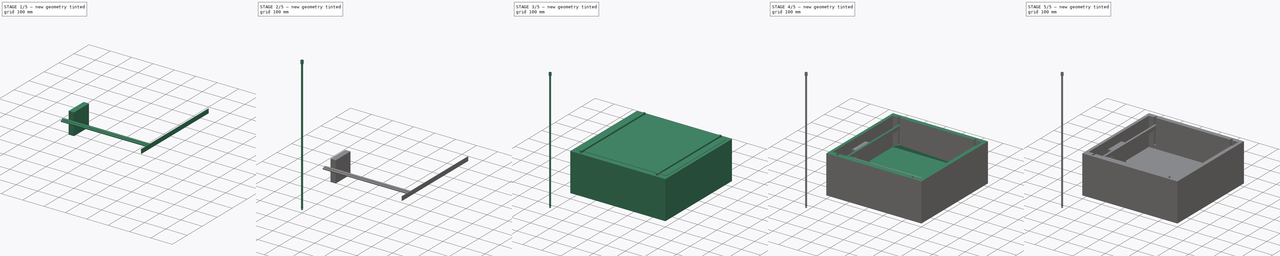
[diagram: build sequence overview — one tinted view per stage of 5, left to right]
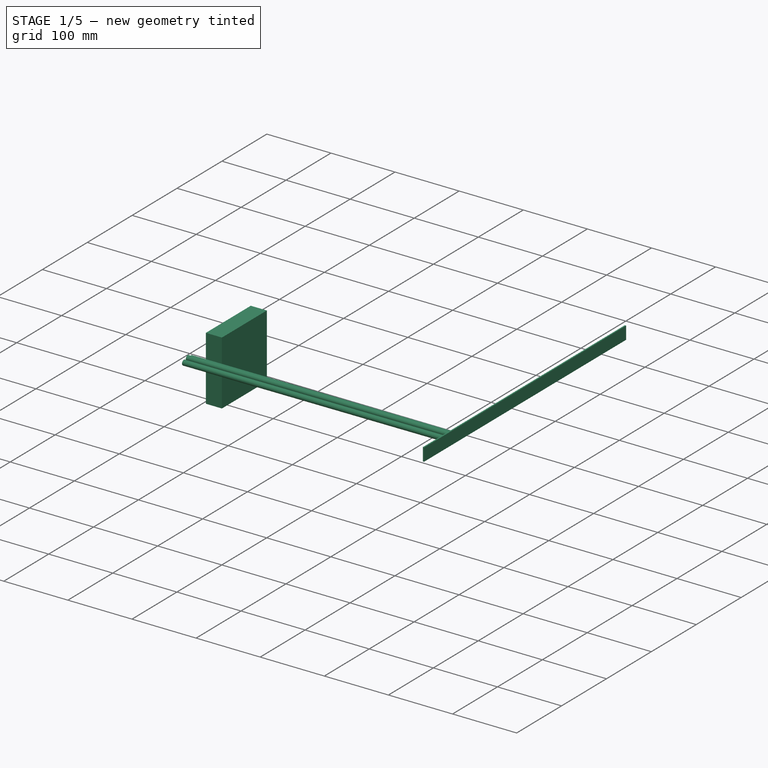
[diagram: stage 1 of 5 — iso view after this stage's code; geometry added in this stage tinted green]
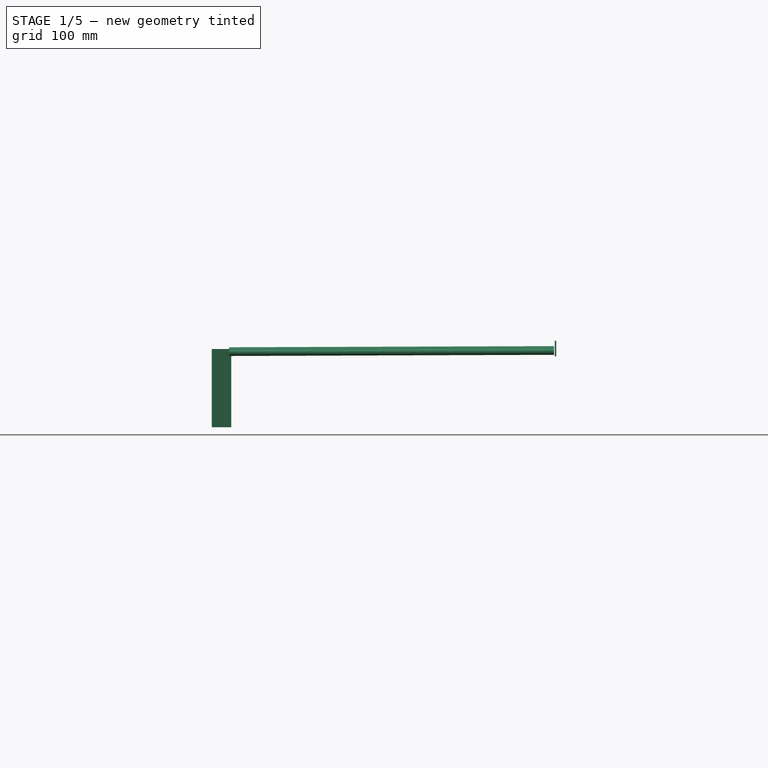
[diagram: stage 1 of 5 — front view after this stage's code; geometry added in this stage tinted green]
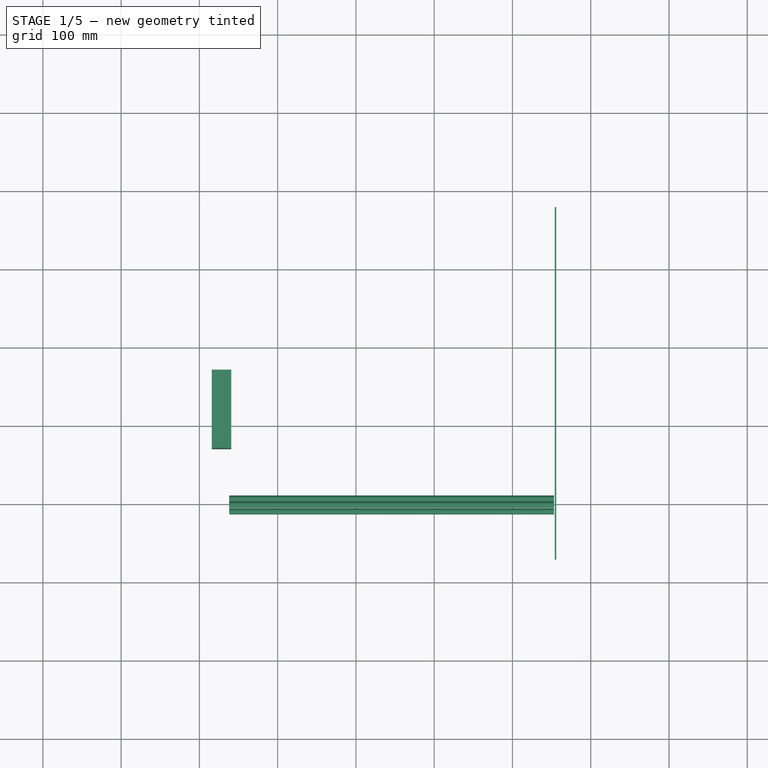
[diagram: stage 1 of 5 — top view after this stage's code; geometry added in this stage tinted green]
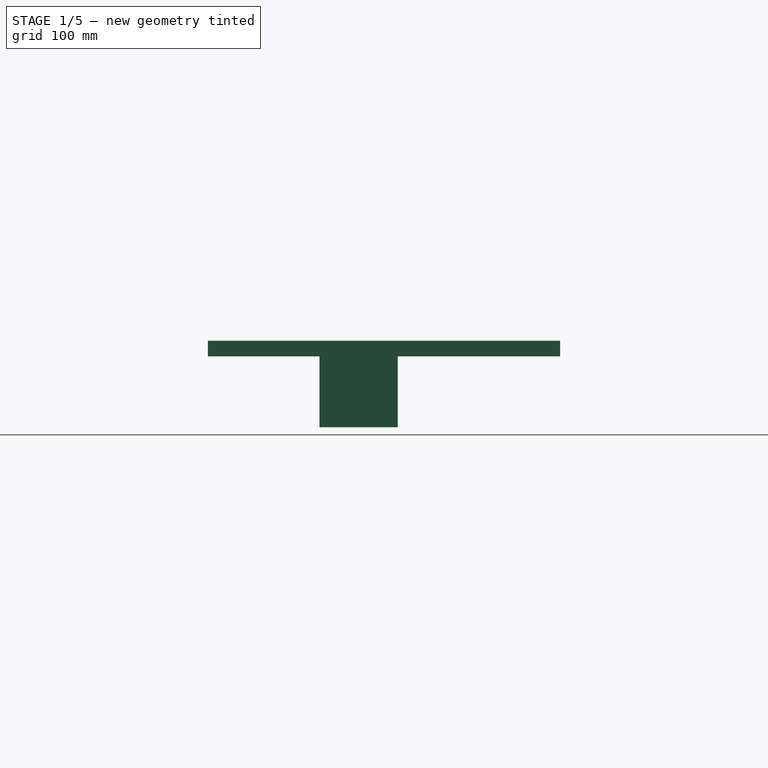
[diagram: stage 1 of 5 — right view after this stage's code; geometry added in this stage tinted green]
FCSTD DOCUMENT  (FreeCAD 0.19R19758 (Git))
Label: CherenkovStrawsConceptPerpendicular
License: All rights reserved
LicenseURL: http://en.wikipedia.org/wiki/All_rights_reserved
objects: Part::Box×9, Part::Cylinder×8, Part::Part2DObjectPython×8, Part::Cut×4, Part::Sweep×4, Part::MultiFuse×2, Sketcher::SketchObject×2, Part::Revolution×2
note: 39 computed .brp shape members not serialized (recipe doc carries the construction recipe); baked Part::Feature solids carry a one-line shape summary decoded from their .brp

FEATURE [Part::Box] Box007  label="CalibLEDBox"
  AttacherType = Attacher::AttachEngine3D
  Height = 25
  Length = 100
  Placement = pos=(40.76,170.6,47) rot=(0,1,0;4.71239rad)
  Width = 100
FEATURE [Part::Box] Box008  label="SiPMPCB"
  AttacherType = Attacher::AttachEngine3D
  Height = 20
  Length = 2
  Placement = pos=(453.97,28,137.5) rot=(0,0,1;0rad)
  Width = 450
FEATURE [Part::Part2DObjectPython] BezCurve  # Draft 2D object (typed FeaturePython)
  Area = 0
  Closed = false
  Degree = 3
  Length = 133.246
  MakeFace = true
  Points = (4) [(37.73,178.199,85.1424),(15,143.338,83.3527),(-3.29845,149.367,143.96),(39.5292,81.953,149.244)]
FEATURE [Part::Part2DObjectPython] Circle001  # Draft 2D object (typed FeaturePython)
  Area = 7.06858
  FirstAngle = 0
  LastAngle = 0
  MakeFace = true
  Placement = pos=(39.5292,81.953,149.244) rot=(-0.540873,0.659298,0.522286;3.71755rad)
  Radius = 1.5
FEATURE [Part::Cylinder] Cylinder008  label="Straw002"
  Angle = 360
  AttacherType = Attacher::AttachEngine3D
  Height = 415
  Placement = pos=(38.0719,89.52,142.084) rot=(0,1,0;1.56731rad)
  Radius = 4
FEATURE [Part::Cylinder] Cylinder009  label="Straw003"
  Angle = 360
  AttacherType = Attacher::AttachEngine3D
  Height = 415
  Placement = pos=(38.0609,97.9,145.244) rot=(0,1,0;1.56731rad)
  Radius = 4
FEATURE [Part::Cylinder] Cylinder010  label="Straw004"
  Angle = 360
  AttacherType = Attacher::AttachEngine3D
  Height = 415
  Placement = pos=(38.0719,105.82,142.084) rot=(0,1,0;1.56731rad)
  Radius = 4
FEATURE [Part::Sweep] Sweep
  Frenet = false
  Placement = pos=(1.17,-1.5,-3.34) rot=(0,0,1;0rad)
  Sections = -> [Circle001]
  Solid = false
  Spine = -> BezCurve [Edge1]
  Transition = 1
FEATURE [Part::Part2DObjectPython] BezCurve001  # Draft 2D object (typed FeaturePython)
  Area = 0
  Closed = false
  Degree = 3
  Length = 133.246
  MakeFace = true
  Points = (4) [(37.73,178.199,85.1424),(15,143.338,83.3527),(-3.29845,149.367,143.96),(39.5292,81.953,149.244)]
FEATURE [Part::Part2DObjectPython] Circle002  # Draft 2D object (typed FeaturePython)
  Area = 7.06858
  FirstAngle = 0
  LastAngle = 0
  MakeFace = true
  Placement = pos=(39.5292,81.953,149.244) rot=(-0.540873,0.659298,0.522286;3.71755rad)
  Radius = 1.5
FEATURE [Part::Sweep] Sweep001
  Frenet = false
  Placement = pos=(1.17,5.29,-8.21) rot=(0,0,1;0rad)
  Sections = -> [Circle002]
  Solid = false
  Spine = -> BezCurve001 [Edge1]
  Transition = 1
FEATURE [Part::Part2DObjectPython] BezCurve002  # Draft 2D object (typed FeaturePython)
  Area = 0
  Closed = false
  Degree = 3
  Length = 133.246
  MakeFace = true
  Points = (4) [(37.73,178.199,85.1424),(15,143.338,83.3527),(-3.29845,149.367,143.96),(39.5292,81.953,149.244)]
FEATURE [Part::Part2DObjectPython] Circle003  # Draft 2D object (typed FeaturePython)
  Area = 7.06858
  FirstAngle = 0
  LastAngle = 0
  MakeFace = true
  Placement = pos=(39.5292,81.953,149.244) rot=(-0.540873,0.659298,0.522286;3.71755rad)
  Radius = 1.5
FEATURE [Part::Sweep] Sweep002
  Frenet = false
  Placement = pos=(1.17,13.15,-5.15) rot=(0,0,1;0rad)
  Sections = -> [Circle003]
  Solid = false
  Spine = -> BezCurve002 [Edge1]
  Transition = 1
FEATURE [Part::Part2DObjectPython] BezCurve003  # Draft 2D object (typed FeaturePython)
  Area = 0
  Closed = false
  Degree = 3
  Length = 133.246
  MakeFace = true
  Points = (4) [(37.73,178.199,85.1424),(15,143.338,83.3527),(-3.29845,149.367,143.96),(39.5292,81.953,149.244)]
FEATURE [Part::Part2DObjectPython] Circle004  # Draft 2D object (typed FeaturePython)
  Area = 7.06858
  FirstAngle = 0
  LastAngle = 0
  MakeFace = true
  Placement = pos=(39.5292,81.953,149.244) rot=(-0.540873,0.659298,0.522286;3.71755rad)
  Radius = 1.5
FEATURE [Part::Sweep] Sweep003
  Frenet = false
  Placement = pos=(1.17,21.69,-7.32) rot=(0,0,1;0rad)
  Sections = -> [Circle004]
  Solid = false
  Spine = -> BezCurve003 [Edge1]
  Transition = 1
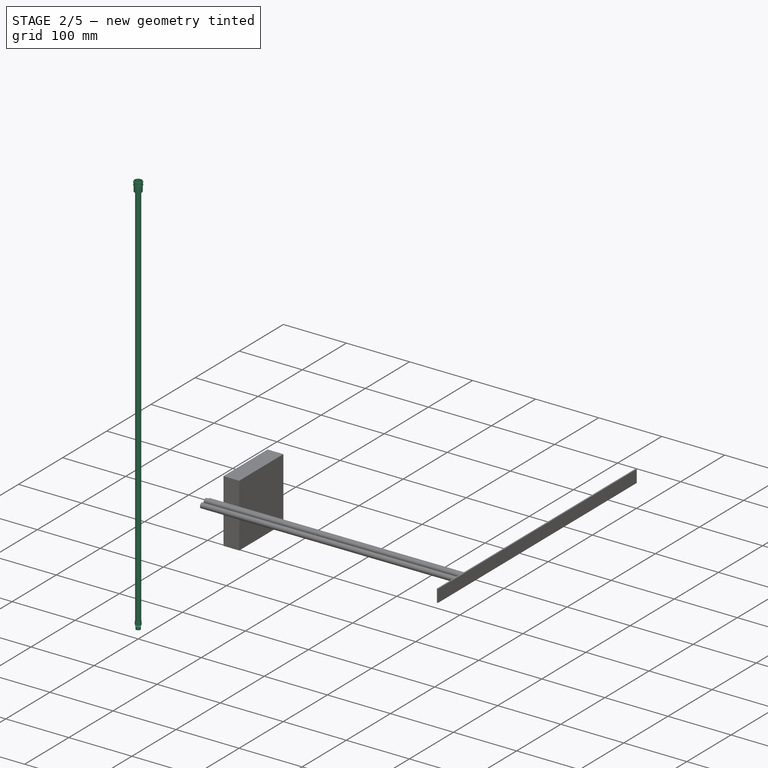
[diagram: stage 2 of 5 — iso view after this stage's code; geometry added in this stage tinted green]
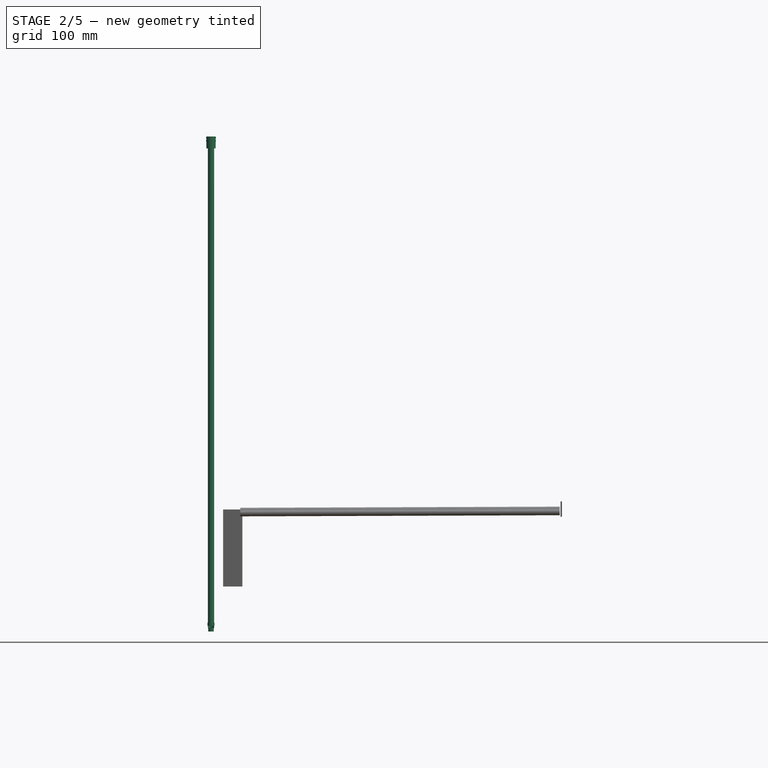
[diagram: stage 2 of 5 — front view after this stage's code; geometry added in this stage tinted green]
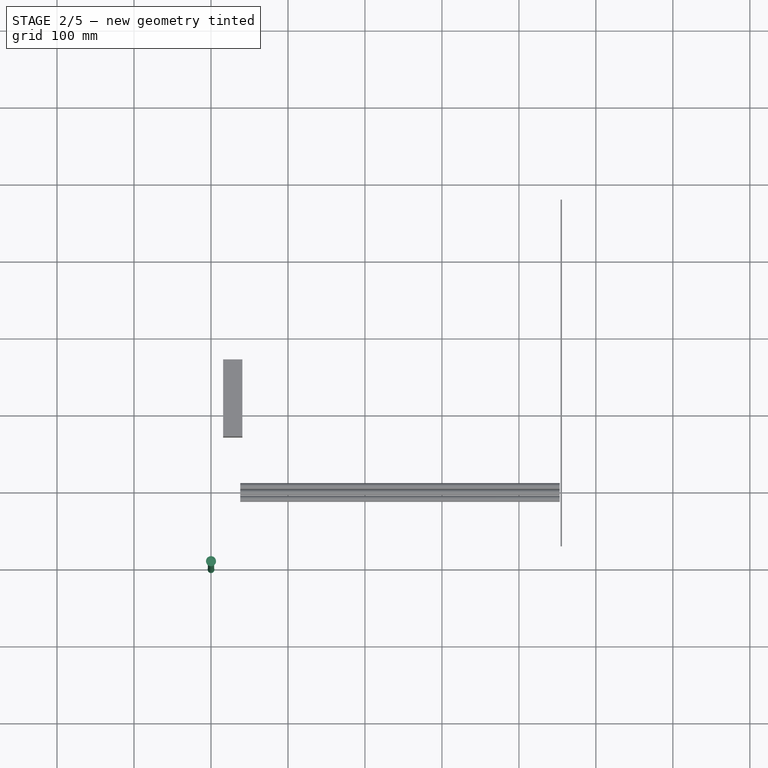
[diagram: stage 2 of 5 — top view after this stage's code; geometry added in this stage tinted green]
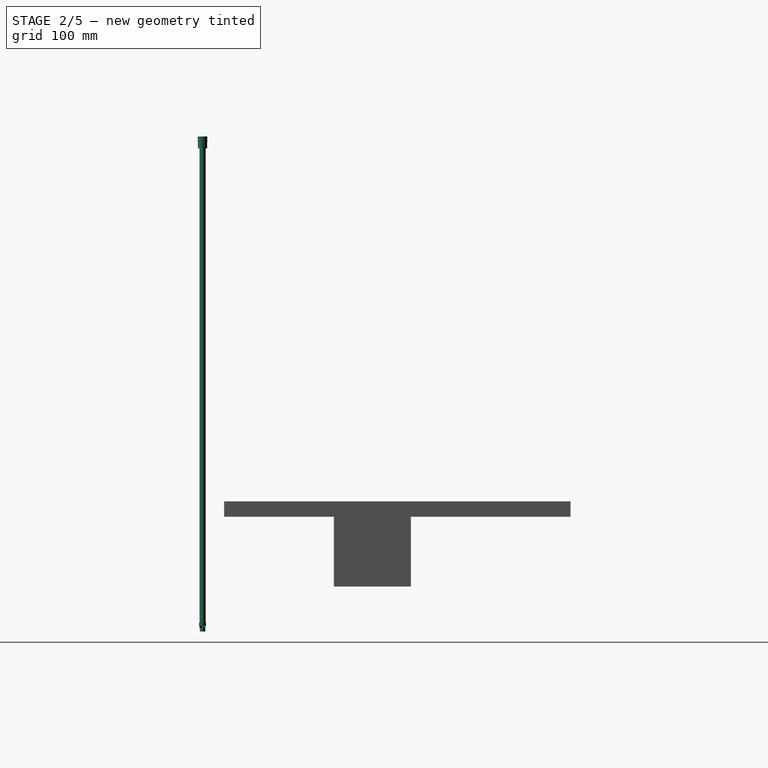
[diagram: stage 2 of 5 — right view after this stage's code; geometry added in this stage tinted green]
FEATURE [Sketcher::SketchObject] Sketch
  Placement = pos=(0,0,0) rot=(1,0,0;1.5708rad)
  sketch-geometry (12):
    g0: LineSegment StartX=0 StartY=0 StartZ=0 EndX=0 EndY=4 EndZ=0
    g1: LineSegment StartX=0 StartY=4 StartZ=0 EndX=4 EndY=4 EndZ=0
    g2: LineSegment StartX=4 StartY=4 StartZ=0 EndX=4 EndY=7 EndZ=0
    g3: LineSegment StartX=4 StartY=7 StartZ=0 EndX=1 EndY=7 EndZ=0
    g4: LineSegment StartX=1 StartY=7 StartZ=0 EndX=1 EndY=11.5 EndZ=0
    g5: LineSegment StartX=1 StartY=11.5 StartZ=0 EndX=3.5 EndY=11.5 EndZ=0
    g6: LineSegment StartX=3.5 StartY=11.5 StartZ=0 EndX=3.5 EndY=7 EndZ=0
    g7: LineSegment StartX=3.5 StartY=7 StartZ=0 EndX=0.5 EndY=7 EndZ=0
    g8: LineSegment StartX=0.5 StartY=7 StartZ=0 EndX=0.5 EndY=4 EndZ=0
    g9: LineSegment StartX=0.5 StartY=4 StartZ=0 EndX=4.5 EndY=4 EndZ=0
    g10: LineSegment StartX=4.5 StartY=4 StartZ=0 EndX=4.5 EndY=0 EndZ=0
    g11: LineSegment StartX=4.5 StartY=0 StartZ=0 EndX=0 EndY=0 EndZ=0
  constraints (35):
    c: Coincident(g-1,g0)
    c: PointOnObject(g0,g-2)
    c: Coincident(g0,g1)
    c: Horizontal(g1)
    c: Coincident(g1,g2)
    c: Vertical(g2)
    c: Coincident(g2,g3)
    c: Horizontal(g3)
    c: Coincident(g3,g4)
    c: Vertical(g4)
    c: Coincident(g4,g5)
    c: Horizontal(g5)
    c: Coincident(g5,g6)
    c: Coincident(g6,g7)
    c: Coincident(g7,g8)
    c: Vertical(g8)
    c: Coincident(g8,g9)
    c: Horizontal(g9)
    c: Coincident(g9,g10)
    c: PointOnObject(g10,g-1)
    c: Vertical(g10)
    c: Coincident(g10,g11)
    c: Coincident(g11,g0)
    c: Equal(g3,g7)
    c: Equal(g1,g9)
    c: Equal(g10,g0)
    c: Equal(g8,g2)
    c: Equal(g4,g6)
    c: Parallel(g4,g6)
    c: Distance(g5) = 2.5
    c: Distance(g2,g7) = 3.5
    c: Distance(g0,g9) = 4.5
    c: Distance(g6) = 4.5
    c: Distance(g2) = 3
    c: Distance(g10) = 4
FEATURE [Part::Revolution] Revolve
  Angle = 360
  Axis = (0,0,1)
  Base = (0,0,0)
  FaceMakerClass = Part::FaceMakerBullseye
  Placement = pos=(0,0,0) rot=(0,1,0;3.14159rad)
  Solid = true
  Source = -> Sketch
  Symmetric = false
FEATURE [Sketcher::SketchObject] Sketch001
  Placement = pos=(0,0,0) rot=(0.57735,0.57735,0.57735;2.0944rad)
  sketch-geometry (20):
    g0: LineSegment StartX=0 StartY=0 StartZ=0 EndX=0 EndY=1 EndZ=0
    g1: LineSegment StartX=0 StartY=1 StartZ=0 EndX=-0.5 EndY=1 EndZ=0
    g2: LineSegment StartX=-0.5 StartY=1 StartZ=0 EndX=-0.5 EndY=2.5 EndZ=0
    g3: LineSegment StartX=-0.5 StartY=2.5 StartZ=0 EndX=0 EndY=2.5 EndZ=0
    g4: LineSegment StartX=0 StartY=2.5 StartZ=0 EndX=0 EndY=5 EndZ=0
    g5: LineSegment StartX=0 StartY=5 StartZ=0 EndX=-0.5 EndY=5 EndZ=0
    g6: LineSegment StartX=-0.5 StartY=5 StartZ=0 EndX=-0.5 EndY=6.5 EndZ=0
    g7: LineSegment StartX=-0.5 StartY=6.5 StartZ=0 EndX=0 EndY=6.5 EndZ=0
    g8: LineSegment StartX=0 StartY=6.5 StartZ=0 EndX=0 EndY=15.5 EndZ=0
    g9: LineSegment StartX=0 StartY=15.5 StartZ=0 EndX=6 EndY=15.5 EndZ=0
    g10: LineSegment StartX=6 StartY=15.5 StartZ=0 EndX=6 EndY=6.5 EndZ=0
    g11: LineSegment StartX=6 StartY=6.5 StartZ=0 EndX=6.5 EndY=6.5 EndZ=0
    g12: LineSegment StartX=6.5 StartY=6.5 StartZ=0 EndX=6.5 EndY=5 EndZ=0
    g13: LineSegment StartX=6.5 StartY=5 StartZ=0 EndX=6 EndY=5 EndZ=0
    g14: LineSegment StartX=6 StartY=5 StartZ=0 EndX=6 EndY=2.5 EndZ=0
    g15: LineSegment StartX=6 StartY=2.5 StartZ=0 EndX=6.5 EndY=2.5 EndZ=0
    g16: LineSegment StartX=6.5 StartY=2.5 StartZ=0 EndX=6.5 EndY=1 EndZ=0
    g17: LineSegment StartX=6.5 StartY=1 StartZ=0 EndX=6 EndY=1 EndZ=0
    g18: LineSegment StartX=6 StartY=1 StartZ=0 EndX=6 EndY=0 EndZ=0
    g19: LineSegment StartX=6 StartY=0 StartZ=0 EndX=0 EndY=0 EndZ=0
  constraints (59):
    c: Coincident(g-1,g0)
    c: Coincident(g0,g1)
    c: Coincident(g1,g2)
    c: Coincident(g2,g3)
    c: Coincident(g3,g4)
    c: Coincident(g4,g5)
    c: Coincident(g5,g6)
    c: Coincident(g6,g7)
    c: Coincident(g7,g8)
    c: PointOnObject(g8,g-2)
    c: Coincident(g8,g9)
    c: Coincident(g9,g10)
    c: Coincident(g10,g11)
    c: Coincident(g11,g12)
    c: Coincident(g12,g13)
    c: Coincident(g13,g14)
    c: Coincident(g14,g15)
    c: Coincident(g15,g16)
    c: Coincident(g16,g17)
    c: Coincident(g17,g18)
    c: Coincident(g18,g19)
    c: Coincident(g19,g0)
    c: Equal(g9,g19)
    c: Distance(g9) = 6
    c: Equal(g7,g11)
    c: Equal(g5,g7)
    c: Equal(g7,g13)
    c: Equal(g15,g7)
    c: Equal(g7,g1)
    c: Equal(g7,g17)
    c: Perpendicular(g7,g8)
    c: Perpendicular(g6,g7)
    c: Perpendicular(g5,g6)
    c: Perpendicular(g4,g5)
    c: Perpendicular(g3,g4)
    c: Perpendicular(g2,g3)
    c: Perpendicular(g1,g2)
    c: Perpendicular(g0,g1)
    c: Perpendicular(g19,g0)
    c: Perpendicular(g18,g19)
    c: Perpendicular(g17,g18)
    c: Perpendicular(g16,g17)
    c: Perpendicular(g15,g16)
    c: Perpendicular(g14,g15)
    c: Perpendicular(g13,g14)
    c: Perpendicular(g12,g13)
    c: Perpendicular(g11,g12)
    c: Perpendicular(g10,g11)
    c: Distance(g6,g11) = 7
    c: Equal(g10,g8)
    c: Equal(g12,g6)
    c: Equal(g4,g14)
    c: Equal(g2,g16)
    c: Equal(g0,g18)
    c: Distance(g10) = 9
    c: Distance(g12) = 1.5
    c: Distance(g16) = 1.5
    c: Distance(g14) = 2.5
    c: Distance(g18) = 1
FEATURE [Part::Cylinder] Cylinder006
  Angle = 360
  AttacherType = Attacher::AttachEngine3D
  Height = 620
  Radius = 4
FEATURE [Part::Cylinder] Cylinder007
  Angle = 360
  AttacherType = Attacher::AttachEngine3D
  Height = 30
  Placement = pos=(0,0,618) rot=(0,0,1;0rad)
  Radius = 5
FEATURE [Part::Revolution] Revolve001
  Angle = 360
  Axis = (0,0,1)
  Base = (0,0,0)
  FaceMakerClass = Part::FaceMakerBullseye
  Placement = pos=(0,7.7e-14,631.5) rot=(1,0,0;3.14159rad)
  Solid = true
  Source = -> Sketch001
  Symmetric = false
FEATURE [Part::Cut] Cut003
  Base = -> Revolve001
  Tool = -> Cylinder007
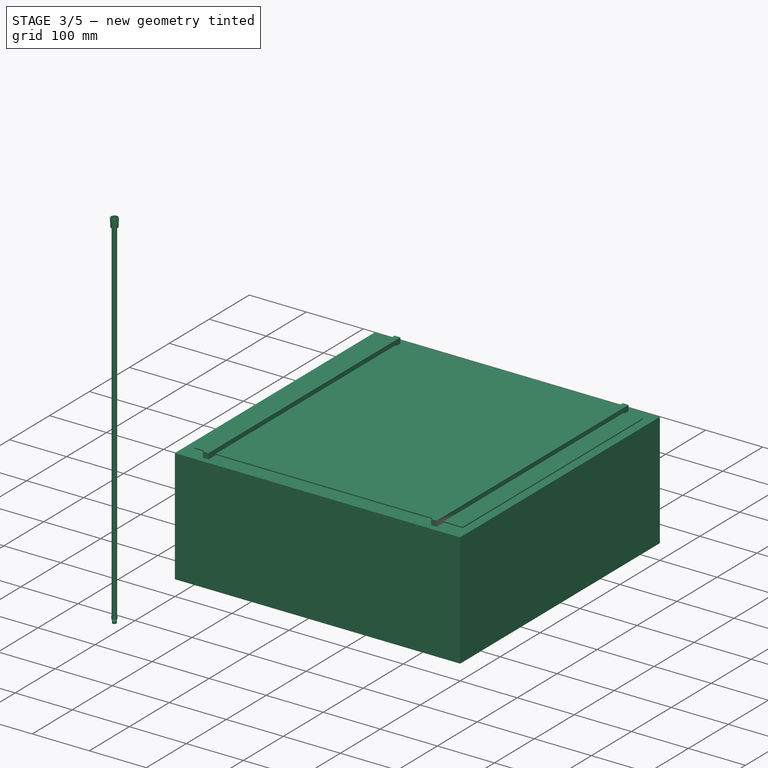
[diagram: stage 3 of 5 — iso view after this stage's code; geometry added in this stage tinted green]
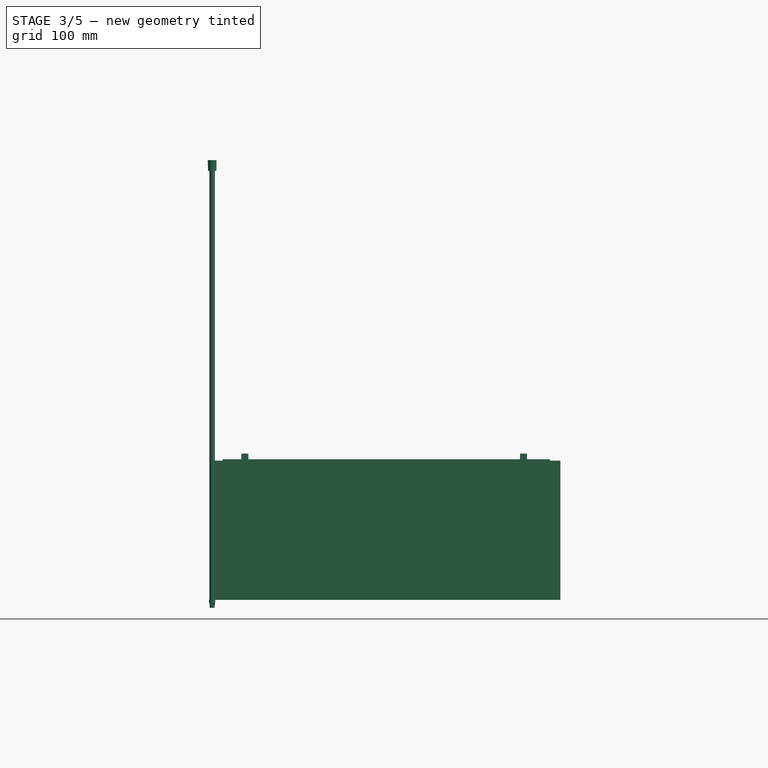
[diagram: stage 3 of 5 — front view after this stage's code; geometry added in this stage tinted green]
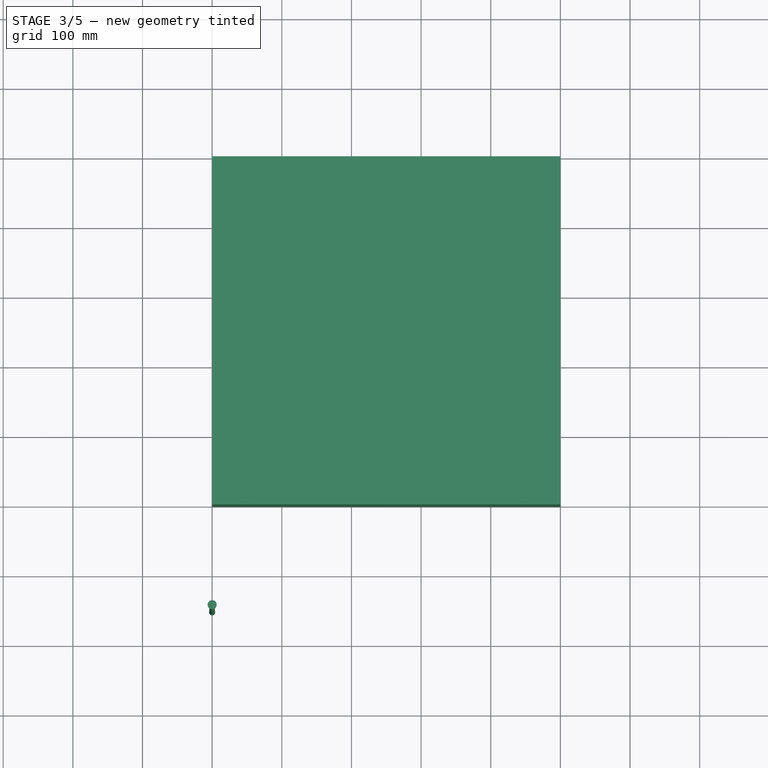
[diagram: stage 3 of 5 — top view after this stage's code; geometry added in this stage tinted green]
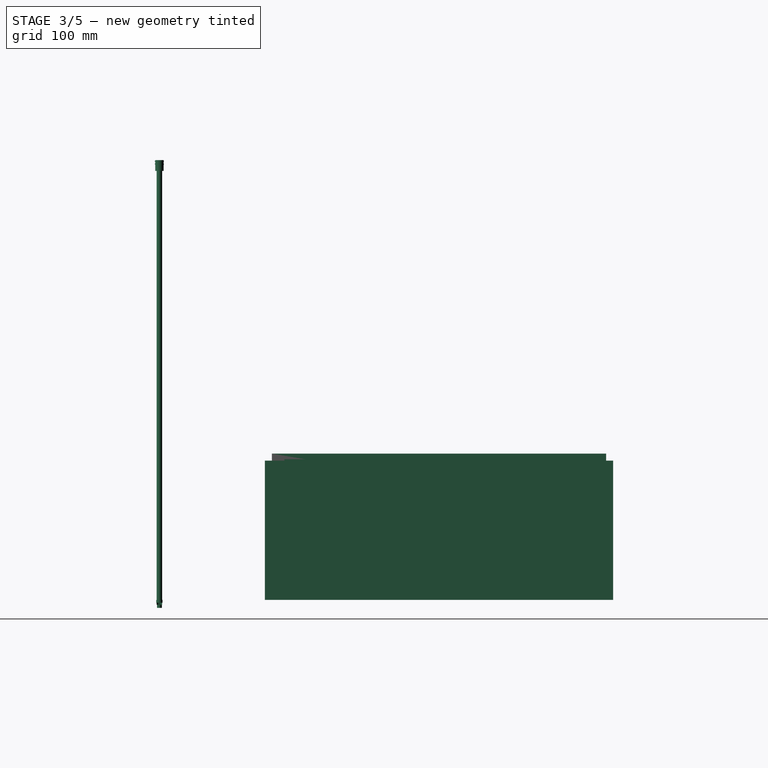
[diagram: stage 3 of 5 — right view after this stage's code; geometry added in this stage tinted green]
FEATURE [Part::Box] Box  label="Cube"
  AttacherType = Attacher::AttachEngine3D
  Height = 150
  Length = 470
  Placement = pos=(15,28,52) rot=(0,0,1;0rad)
  Width = 450
FEATURE [Part::Box] Box001  label="Cube001"
  AttacherType = Attacher::AttachEngine3D
  Height = 200
  Length = 500
  Width = 500
FEATURE [Part::Box] Box003  label="Cube003"
  AttacherType = Attacher::AttachEngine3D
  Height = 140
  Length = 10
  Placement = pos=(42,10,70) rot=(0,0,1;0rad)
  Width = 480
FEATURE [Part::Box] Box005  label="Cube005"
  AttacherType = Attacher::AttachEngine3D
  Height = 80
  Length = 10
  Placement = pos=(442,10,130) rot=(0,0,1;0rad)
  Width = 480
FEATURE [Part::MultiFuse] Fusion001  label="StrawMockup"
  Placement = pos=(0,-151.5,0) rot=(0,0,1;0rad)
  Shapes = -> [Cut003,Cylinder006,Revolve]
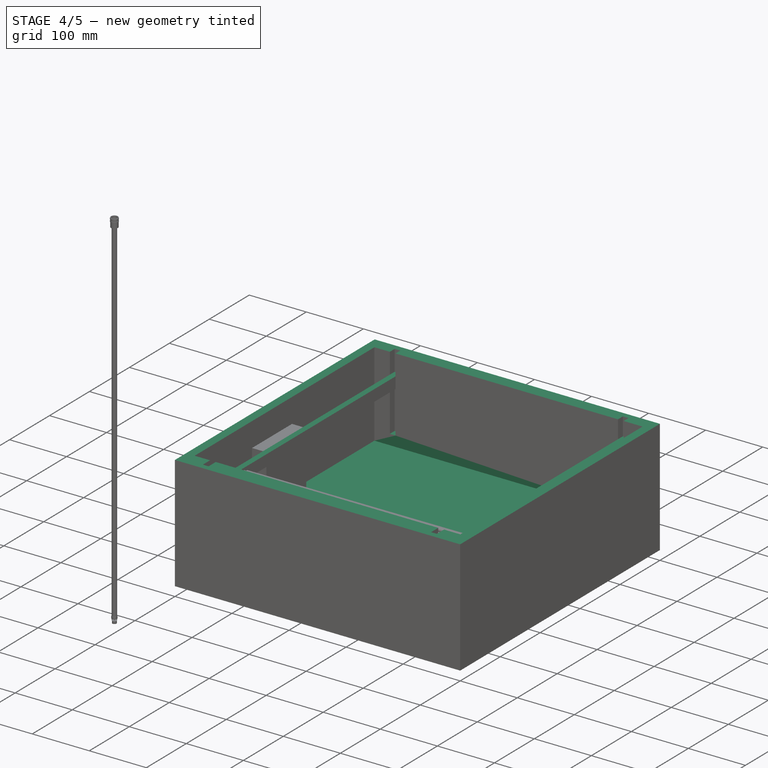
[diagram: stage 4 of 5 — iso view after this stage's code; geometry added in this stage tinted green]
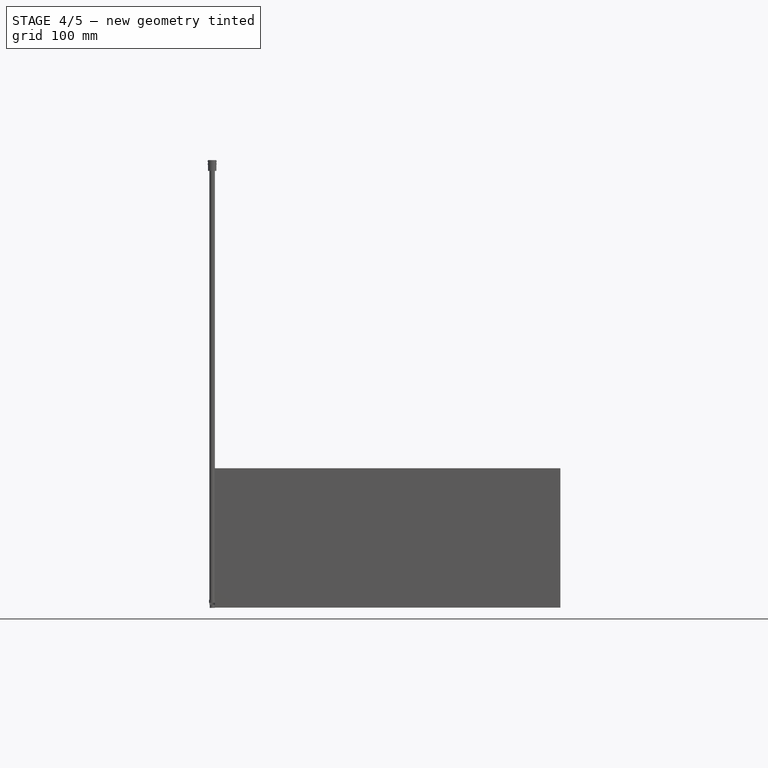
[diagram: stage 4 of 5 — front view after this stage's code; geometry added in this stage tinted green]
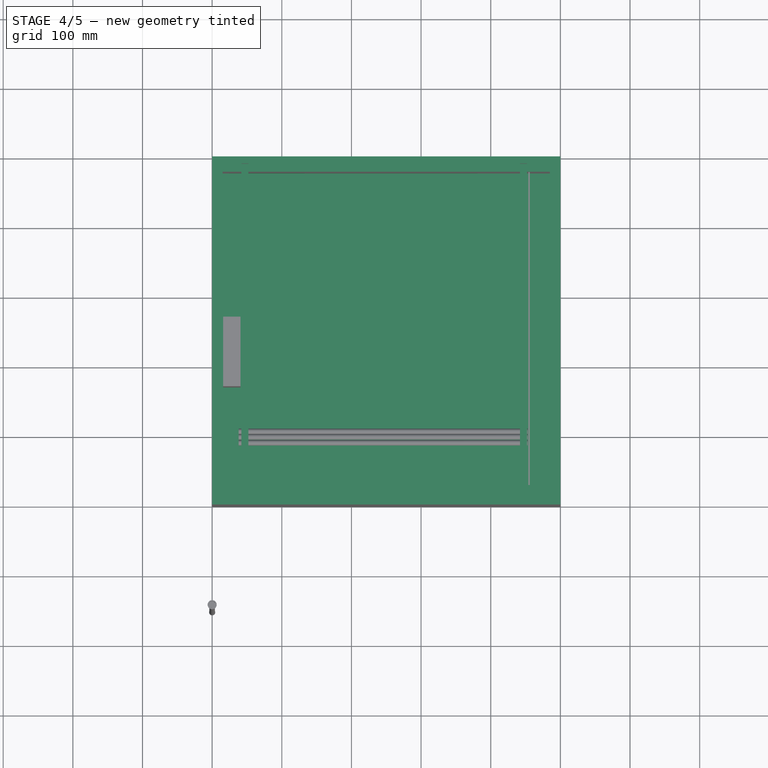
[diagram: stage 4 of 5 — top view after this stage's code; geometry added in this stage tinted green]
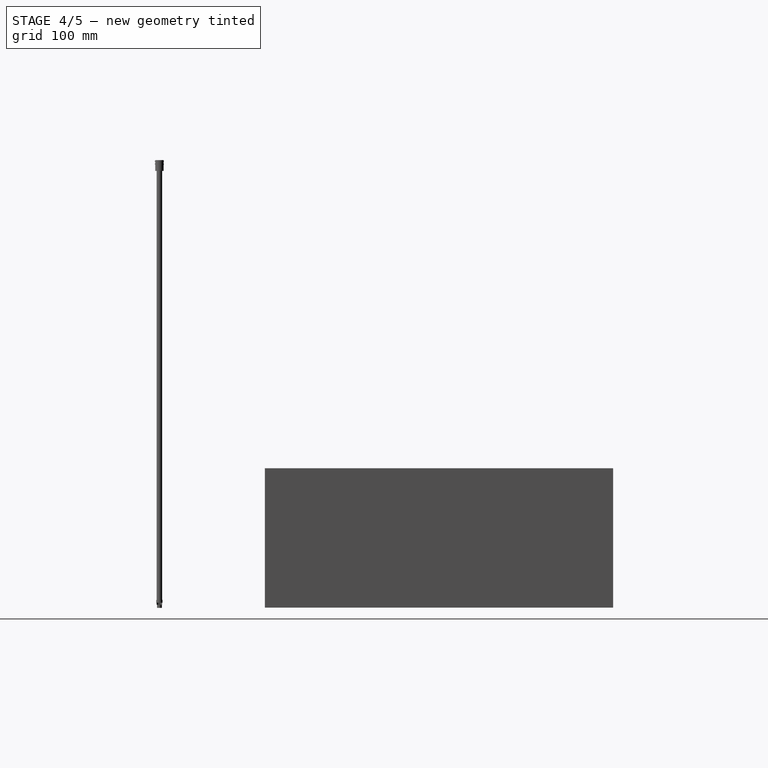
[diagram: stage 4 of 5 — right view after this stage's code; geometry added in this stage tinted green]
FEATURE [Part::Cut] Cut
  Base = -> Box001
  Tool = -> Box
FEATURE [Part::Box] Box004  label="SupportStructureLower"
  AttacherType = Attacher::AttachEngine3D
  Height = 20
  Length = 10
  Placement = pos=(42,10,132.76) rot=(0,0,1;0rad)
  Width = 480
FEATURE [Part::Cut] Cut001
  Base = -> Cut
  Tool = -> Box003
FEATURE [Part::Box] Box006  label="SupportStructureUpper"
  AttacherType = Attacher::AttachEngine3D
  Height = 20
  Length = 10
  Placement = pos=(442,10,137.5) rot=(0,0,1;0rad)
  Width = 480
FEATURE [Part::Cut] Cut002  label="GasBox"
  Base = -> Cut001
  Placement = pos=(0,0,-11) rot=(0,0,1;0rad)
  Tool = -> Box005
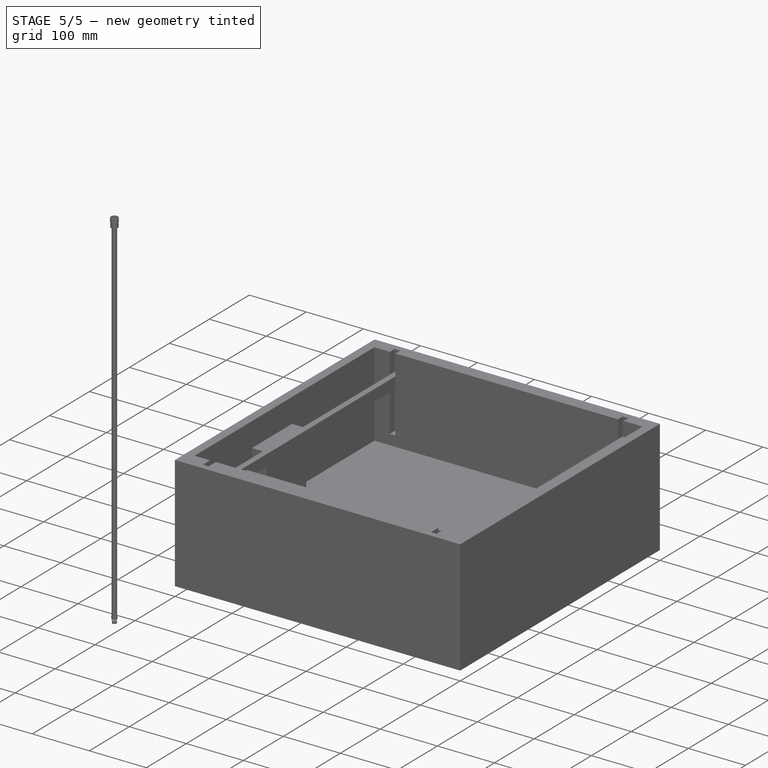
[diagram: stage 5 of 5 — iso view after this stage's code; geometry added in this stage tinted green]
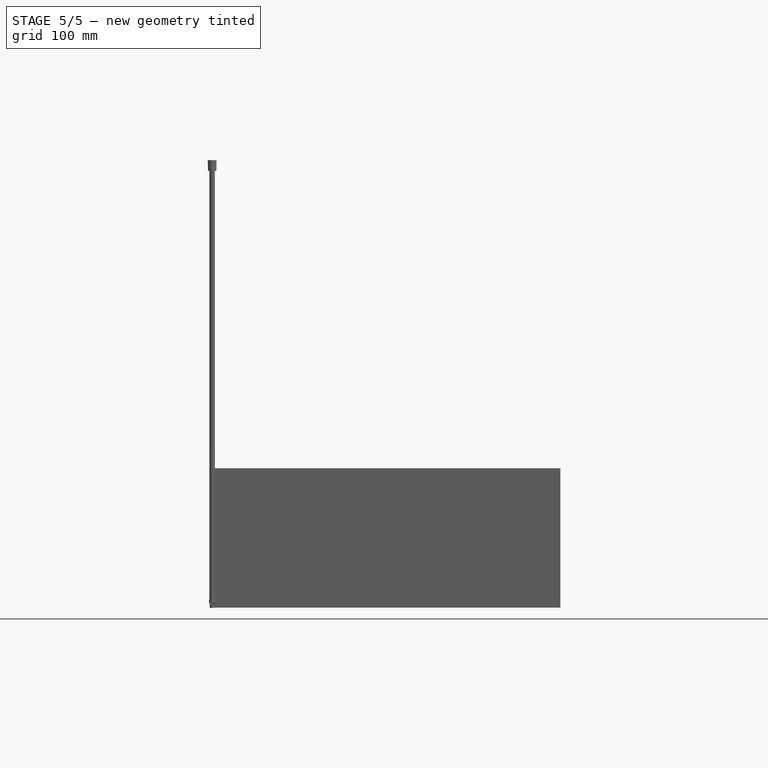
[diagram: stage 5 of 5 — front view after this stage's code; geometry added in this stage tinted green]
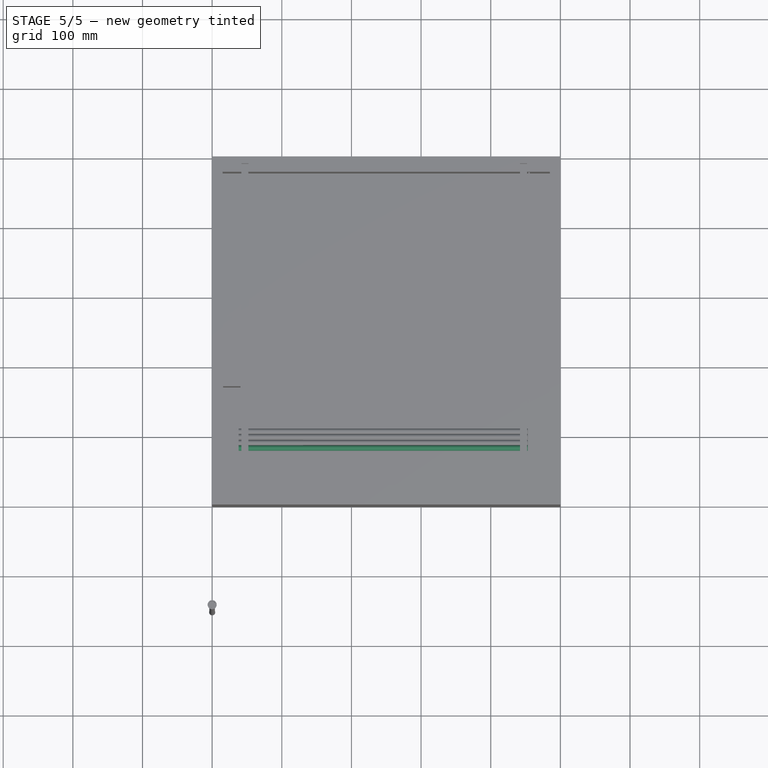
[diagram: stage 5 of 5 — top view after this stage's code; geometry added in this stage tinted green]
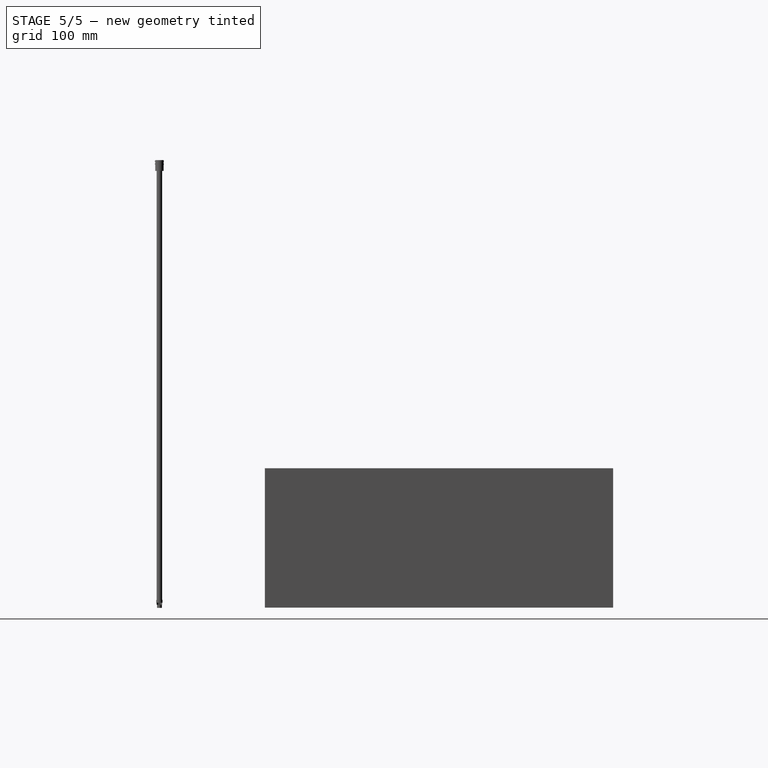
[diagram: stage 5 of 5 — right view after this stage's code; geometry added in this stage tinted green]
FEATURE [Part::Cylinder] Cylinder  label="Straw1"
  Angle = 360
  AttacherType = Attacher::AttachEngine3D
  Height = 415
  Placement = pos=(38.0609,82,145.244) rot=(0,1,0;1.56731rad)
  Radius = 4
FEATURE [Part::Cylinder] Cylinder003
  Angle = 360
  AttacherType = Attacher::AttachEngine3D
  Height = 10
  Placement = pos=(3,57,139) rot=(0,-1,0;1.5708rad)
  Radius = 20
FEATURE [Part::Box] Box002  label="Cube002"
  AttacherType = Attacher::AttachEngine3D
  Height = 40
  Length = 10
  Placement = pos=(-8,55,119) rot=(0,0,1;0rad)
  Width = 400
FEATURE [Part::Cylinder] Cylinder004
  Angle = 360
  AttacherType = Attacher::AttachEngine3D
  Height = 10
  Placement = pos=(3,455,139) rot=(0,-1,0;1.5708rad)
  Radius = 20
FEATURE [Part::MultiFuse] Fusion  label="Window"
  Placement = pos=(94.53,0,28.45) rot=(0,-1,0;4.71239rad)
  Shapes = -> [Cylinder003,Box002,Cylinder004]
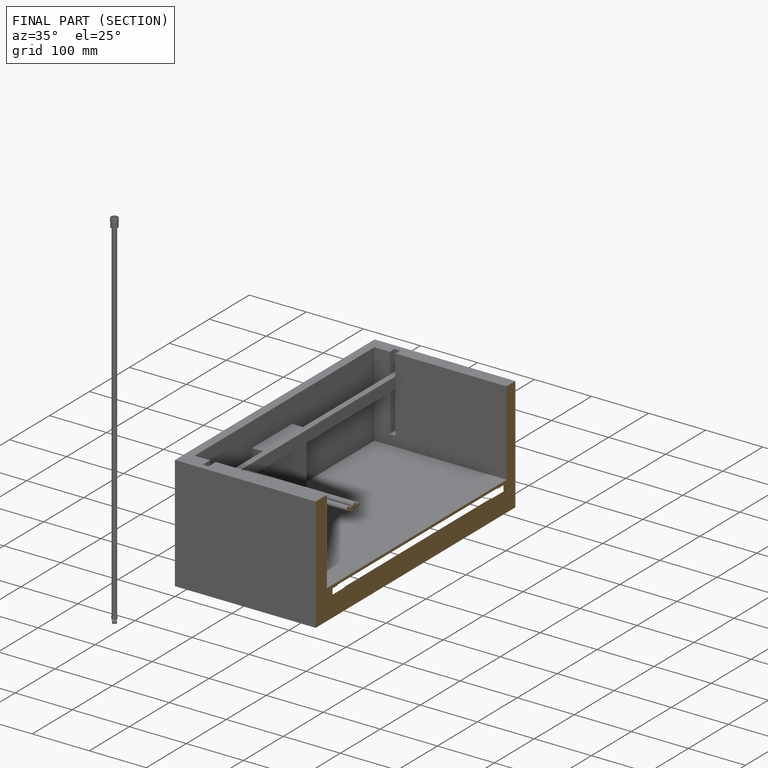
[diagram: finished part — half-section view (interior)]
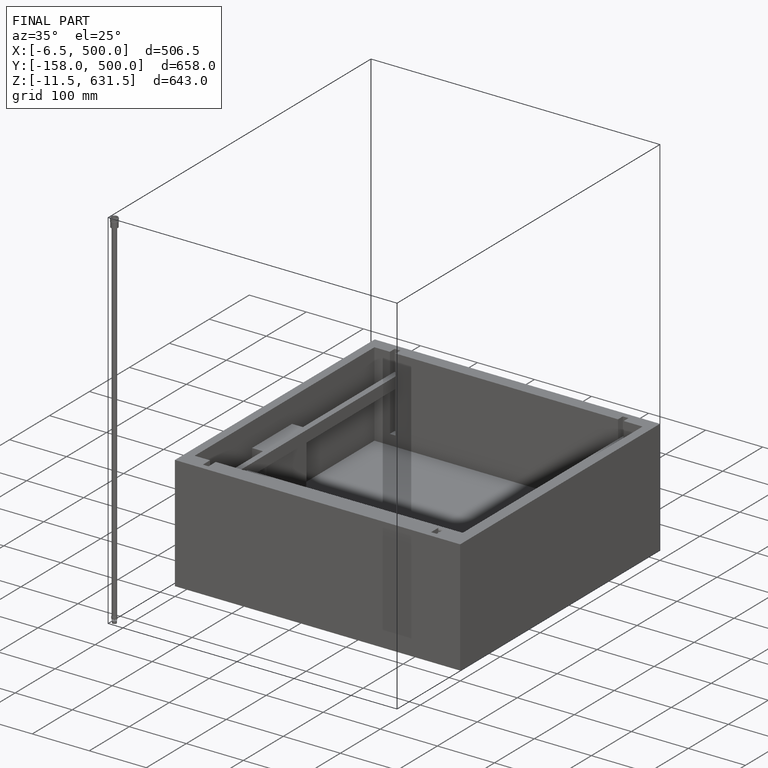
[diagram: finished part — iso view with bounding-box wireframe]
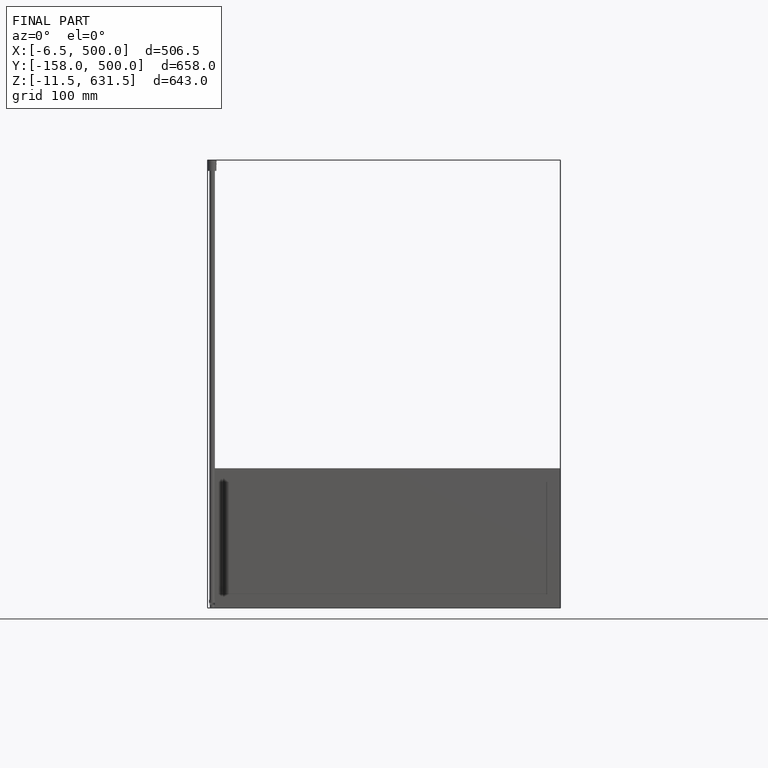
[diagram: finished part — front view with bounding-box wireframe]
